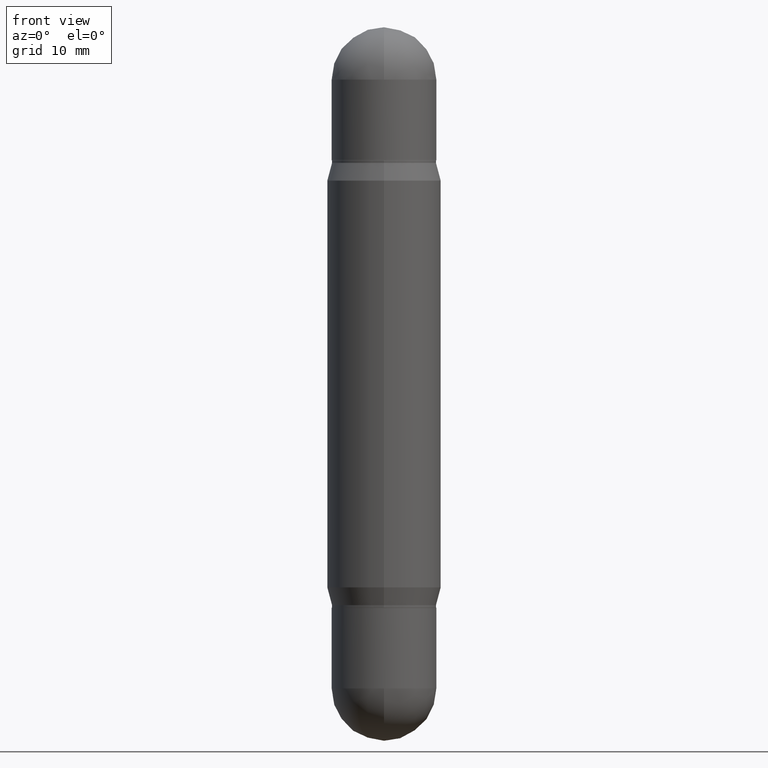
[diagram: clean part render]
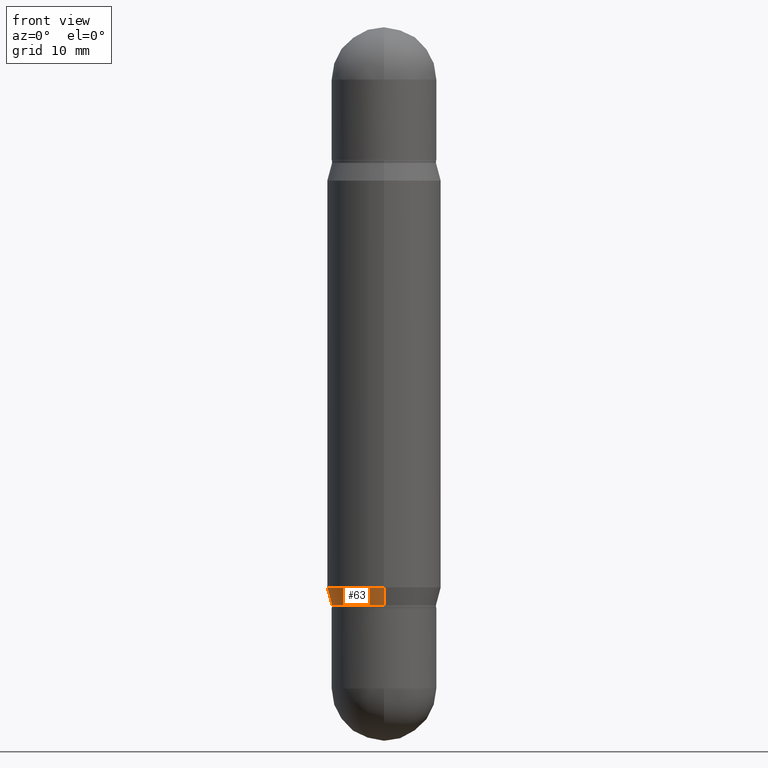
[diagram: same view with one face highlighted and labeled with its STEP entity id]
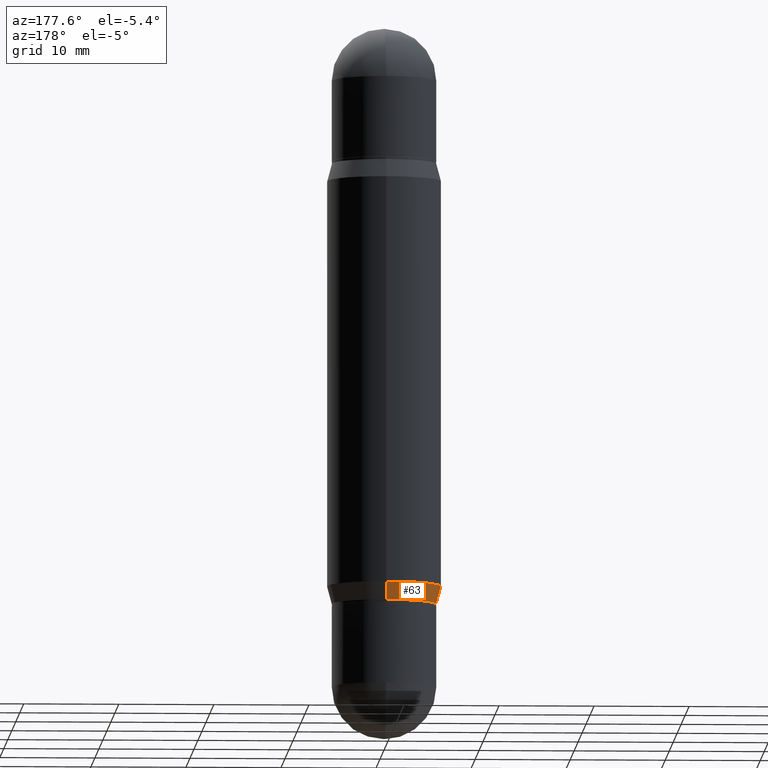
[diagram: same view with one face highlighted and labeled with its STEP entity id]
A machine part, front view. The second image highlights one B-rep face of the part: STEP entity #63.
A second angle (auxiliary view) of the same face is appended — the face is thin or edge-on in the first view.
In plain terms, the highlighted conical surface has half-angle 15 deg.
Its self-contained STEP definition (entity closure, byte-faithful):
#63 = ADVANCED_FACE ( 'NONE', ( #455 ), #663, .T. ) ;
#94 = CARTESIAN_POINT ( 'NONE',  ( 1.538680294288555275E-15, 0.2165499999999916381, -2.391599999999999948 ) ) ;
#98 = AXIS2_PLACEMENT_3D ( 'NONE', #1100, #405, #251 ) ;
#115 = DIRECTION ( 'NONE',  ( -2.443493668867244874E-29, 3.494309847900201171E-15, 1.000000000000000000 ) ) ;
#130 = EDGE_CURVE ( 'NONE', #318, #181, #460, .T. ) ;
#173 = EDGE_LOOP ( 'NONE', ( #358, #772, #218, #651 ) ) ;
#181 = VERTEX_POINT ( 'NONE', #560 ) ;
#205 = CARTESIAN_POINT ( 'NONE',  ( -1.649375784469439333E-15, -0.2362000000000080979, -2.318265201631270589 ) ) ;
#216 = EDGE_CURVE ( 'NONE', #994, #971, #659, .T. ) ;
#218 = ORIENTED_EDGE ( 'NONE', *, *, #216, .T. ) ;
#251 = DIRECTION ( 'NONE',  ( -6.982962677686265922E-15, -1.000000000000000000, 3.469747663417777397E-15 ) ) ;
#294 = CARTESIAN_POINT ( 'NONE',  ( 5.843859458462900686E-29, -8.356991432238117386E-15, -2.391599999999999060 ) ) ;
#318 = VERTEX_POINT ( 'NONE', #1095 ) ;
#324 = AXIS2_PLACEMENT_3D ( 'NONE', #892, #115, #1081 ) ;
#358 = ORIENTED_EDGE ( 'NONE', *, *, #130, .F. ) ;
#366 = DIRECTION ( 'NONE',  ( -6.982962677686265133E-15, -1.000000000000000000, 3.784596620176766988E-15 ) ) ;
#396 = AXIS2_PLACEMENT_3D ( 'NONE', #294, #527, #366 ) ;
#405 = DIRECTION ( 'NONE',  ( -2.443493668867244874E-29, 3.494309847900201171E-15, 1.000000000000000000 ) ) ;
#455 = FACE_OUTER_BOUND ( 'NONE', #173, .T. ) ;
#460 = LINE ( 'NONE', #94, #820 ) ;
#486 = DIRECTION ( 'NONE',  ( -1.807323732225339211E-15, -0.2588190451025194627, 0.9659258262890687563 ) ) ;
#527 = DIRECTION ( 'NONE',  ( -2.443493668867244874E-29, 3.494309847900201171E-15, 1.000000000000000000 ) ) ;
#560 = CARTESIAN_POINT ( 'NONE',  ( 1.620449627073671761E-15, 0.2361999999999919164, -2.318265201631272365 ) ) ;
#651 = ORIENTED_EDGE ( 'NONE', *, *, #740, .F. ) ;
#659 = LINE ( 'NONE', #996, #944 ) ;
#663 = CONICAL_SURFACE ( 'NONE', #396, 0.2165500000000000203, 0.2617993877991515173 ) ;
#740 = EDGE_CURVE ( 'NONE', #181, #971, #968, .T. ) ;
#772 = ORIENTED_EDGE ( 'NONE', *, *, #1026, .T. ) ;
#794 = DIRECTION ( 'NONE',  ( 1.839019923739608598E-15, 0.2588190451025261241, 0.9659258262890667579 ) ) ;
#820 = VECTOR ( 'NONE', #794, 39.37007874015748854 ) ;
#892 = CARTESIAN_POINT ( 'NONE',  ( 5.843859458462900686E-29, -8.356991432238117386E-15, -2.391599999999999060 ) ) ;
#944 = VECTOR ( 'NONE', #486, 39.37007874015747433 ) ;
#968 = CIRCLE ( 'NONE', #98, 0.2361999999999999933 ) ;
#971 = VERTEX_POINT ( 'NONE', #205 ) ;
#994 = VERTEX_POINT ( 'NONE', #1067 ) ;
#996 = CARTESIAN_POINT ( 'NONE',  ( -1.512160567852902447E-15, -0.2165500000000083747, -2.391599999999998172 ) ) ;
#1026 = EDGE_CURVE ( 'NONE', #318, #994, #1079, .T. ) ;
#1067 = CARTESIAN_POINT ( 'NONE',  ( -1.512160567852902447E-15, -0.2165500000000083747, -2.391599999999998172 ) ) ;
#1079 = CIRCLE ( 'NONE', #324, 0.2165500000000000203 ) ;
#1081 = DIRECTION ( 'NONE',  ( -6.982962677686265133E-15, -1.000000000000000000, 3.784596620176766988E-15 ) ) ;
#1095 = CARTESIAN_POINT ( 'NONE',  ( 1.538680294288555472E-15, 0.2165499999999916381, -2.391599999999999948 ) ) ;
#1100 = CARTESIAN_POINT ( 'NONE',  ( 5.664666342941258736E-29, -8.100736924104496665E-15, -2.318265201631271477 ) ) ;